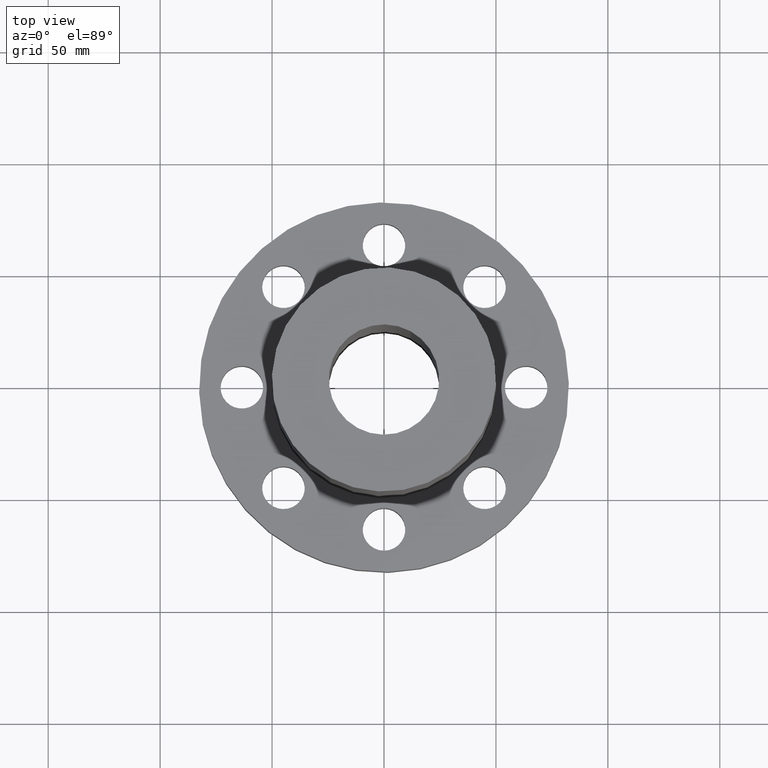
[diagram: clean part render]
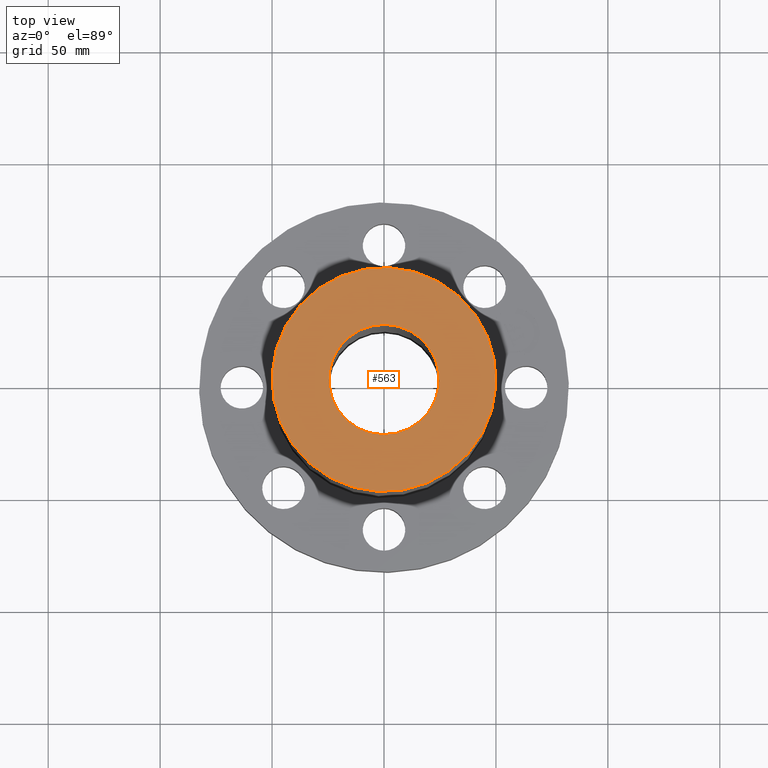
[diagram: same view with one face highlighted and labeled with its STEP entity id]
A machine part, top view. The second image highlights one B-rep face of the part: STEP entity #563.
In plain terms, the highlighted planar face has unit normal (0, 0, -1).
Its self-contained STEP definition (entity closure, byte-faithful):
#507=AXIS2_PLACEMENT_3D('Circle Axis2P3D',#505,#506,$) ;
#526=AXIS2_PLACEMENT_3D('Circle Axis2P3D',#524,#525,$) ;
#539=AXIS2_PLACEMENT_3D('Plane Axis2P3D',#536,#537,#538) ;
#547=AXIS2_PLACEMENT_3D('Circle Axis2P3D',#545,#546,$) ;
#556=AXIS2_PLACEMENT_3D('Circle Axis2P3D',#554,#555,$) ;
#502=CARTESIAN_POINT('Vertex',(0.944468311054,1.72883764693,8.75000000004)) ;
#505=CARTESIAN_POINT('Axis2P3D Location',(0.,0.,8.75000000003)) ;
#509=CARTESIAN_POINT('Vertex',(-0.944468311054,-1.72883764693,8.75000000004)) ;
#524=CARTESIAN_POINT('Axis2P3D Location',(0.,0.,8.75000000003)) ;
#536=CARTESIAN_POINT('Axis2P3D Location',(0.,1.97000000001,8.75000000003)) ;
#545=CARTESIAN_POINT('Axis2P3D Location',(0.,0.,8.75000000003)) ;
#549=CARTESIAN_POINT('Vertex',(-0.465042772448,-0.851255085037,8.75000000004)) ;
#551=CARTESIAN_POINT('Vertex',(0.465042772448,0.851255085037,8.75000000004)) ;
#554=CARTESIAN_POINT('Axis2P3D Location',(0.,0.,8.75000000003)) ;
#506=DIRECTION('Axis2P3D Direction',(0.,0.,-0.0393700787402)) ;
#525=DIRECTION('Axis2P3D Direction',(0.,0.,-0.0393700787402)) ;
#537=DIRECTION('Axis2P3D Direction',(0.,0.,-0.0393700787402)) ;
#538=DIRECTION('Axis2P3D XDirection',(0.0393700787402,0.,0.)) ;
#546=DIRECTION('Axis2P3D Direction',(0.,0.,-0.0393700787402)) ;
#555=DIRECTION('Axis2P3D Direction',(0.,0.,-0.0393700787402)) ;
#542=ORIENTED_EDGE('',*,*,#511,.F.) ;
#543=ORIENTED_EDGE('',*,*,#528,.F.) ;
#560=ORIENTED_EDGE('',*,*,#553,.T.) ;
#561=ORIENTED_EDGE('',*,*,#558,.T.) ;
#562=FACE_BOUND('',#559,.T.) ;
#563=ADVANCED_FACE('PartBody',(#544,#562),#540,.F.) ;
#508=CIRCLE('generated circle',#507,1.97000000001) ;
#527=CIRCLE('generated circle',#526,1.97000000001) ;
#548=CIRCLE('generated circle',#547,0.970000000004) ;
#557=CIRCLE('generated circle',#556,0.970000000004) ;
#511=EDGE_CURVE('',#503,#510,#508,.T.) ;
#528=EDGE_CURVE('',#510,#503,#527,.T.) ;
#553=EDGE_CURVE('',#550,#552,#548,.T.) ;
#558=EDGE_CURVE('',#552,#550,#557,.T.) ;
#541=EDGE_LOOP('',(#542,#543)) ;
#559=EDGE_LOOP('',(#560,#561)) ;
#544=FACE_OUTER_BOUND('',#541,.T.) ;
#540=PLANE('',#539) ;
#503=VERTEX_POINT('',#502) ;
#510=VERTEX_POINT('',#509) ;
#550=VERTEX_POINT('',#549) ;
#552=VERTEX_POINT('',#551) ;